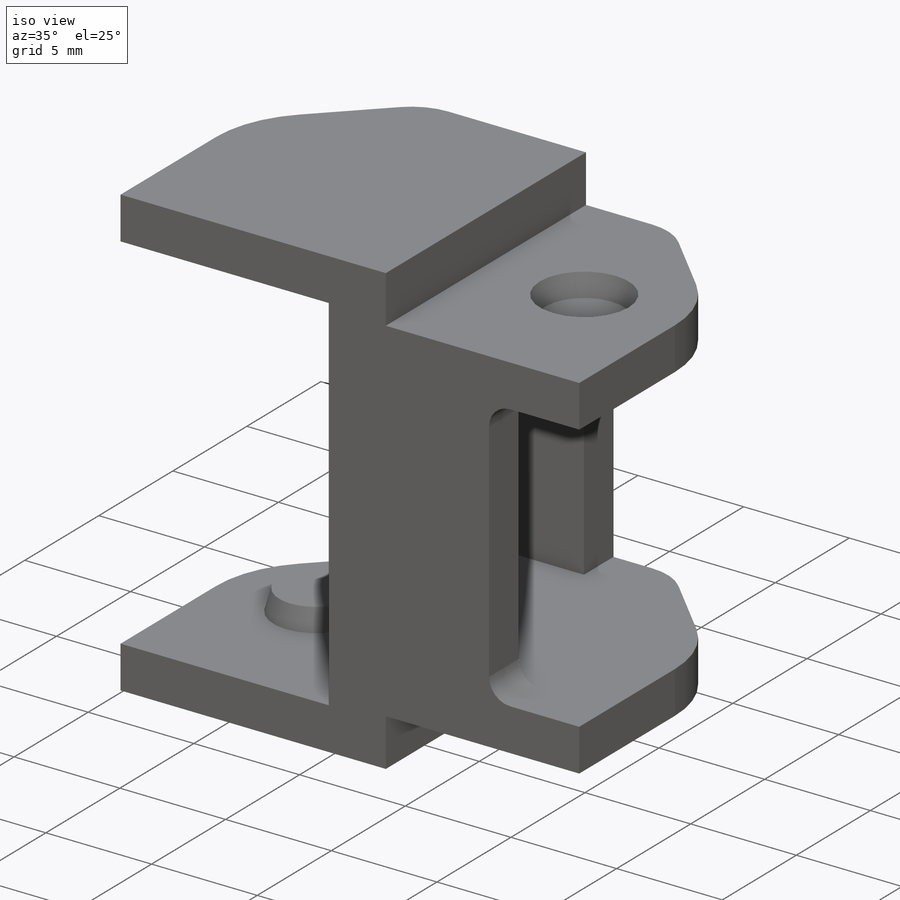
[diagram: iso view]
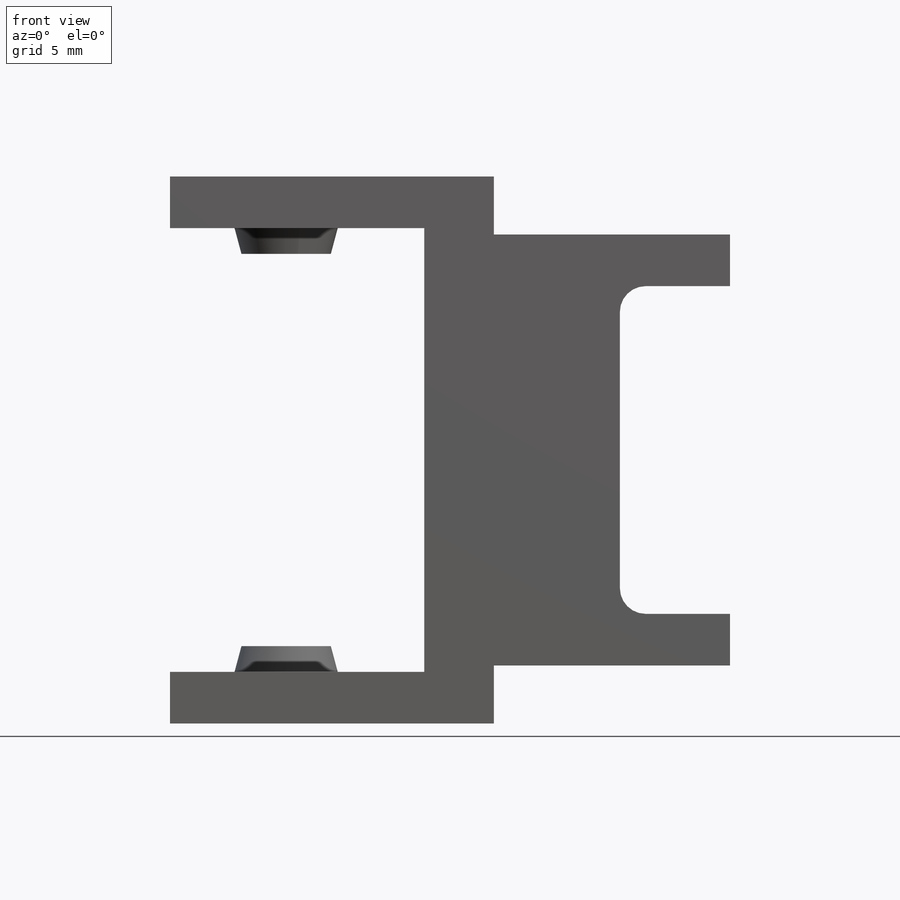
[diagram: front view]
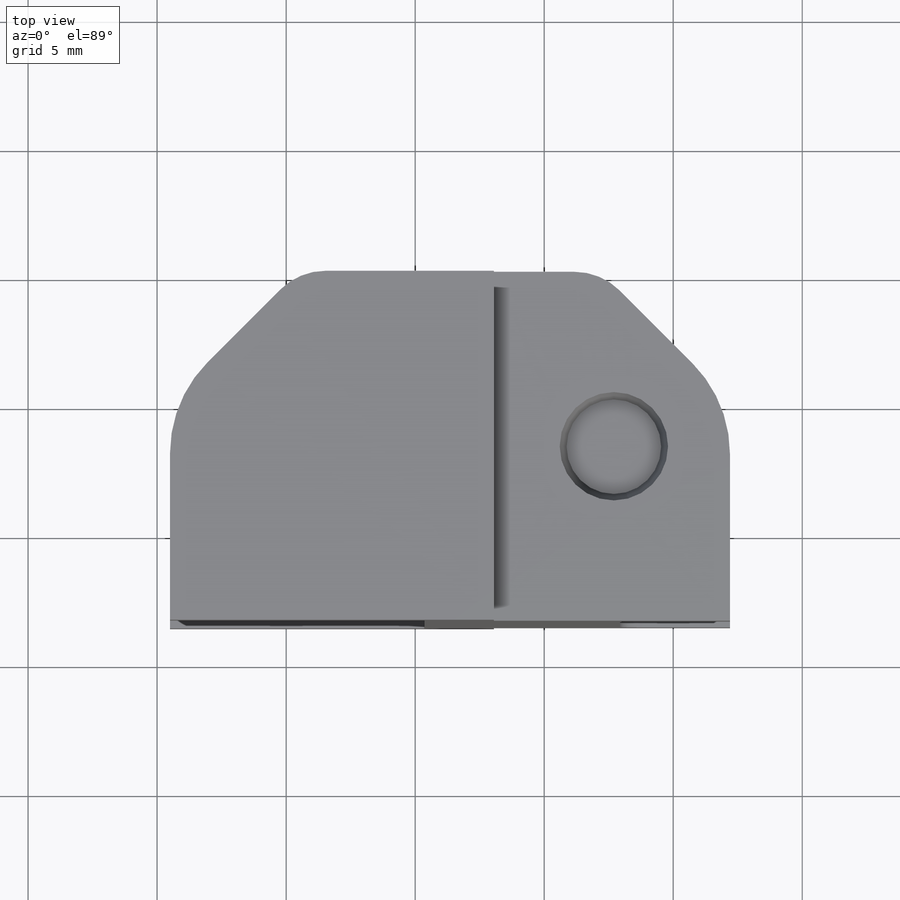
[diagram: top view]
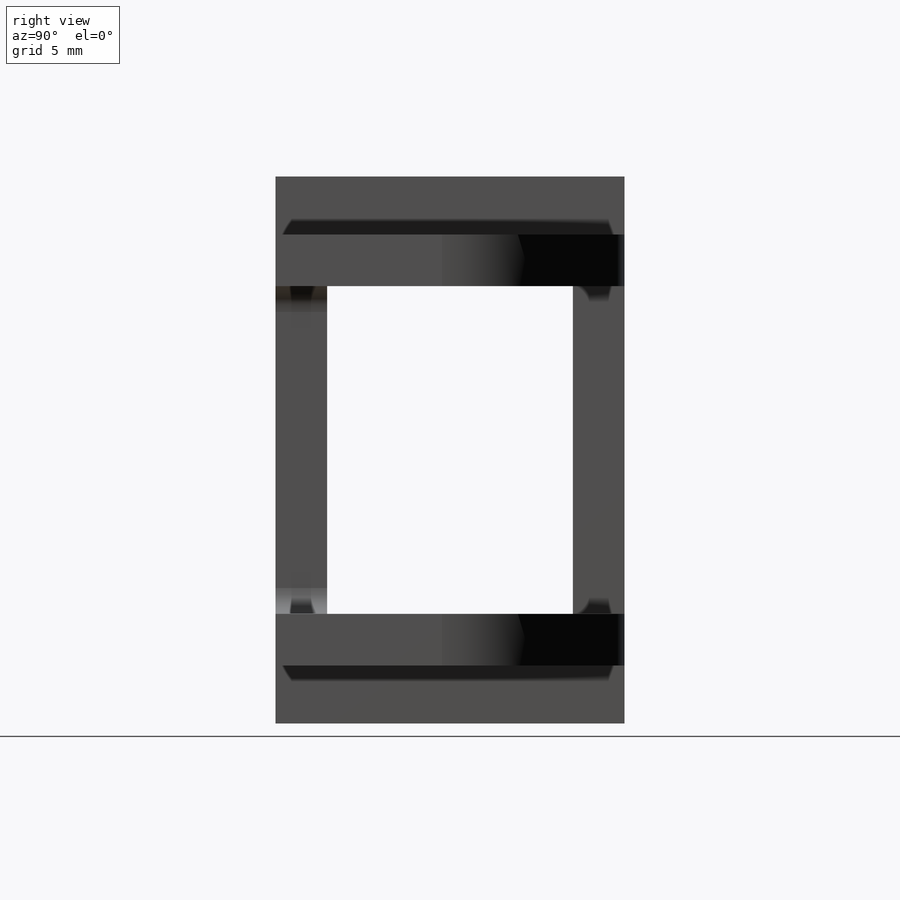
[diagram: right view]
SOLIDWORKS PART (.sldprt)
format: sldprt  version: not decoded by parser v0  size: 504,320 bytes
history: native  units: mm
features: sketch x7, chamfer x5, extrude x4, cut_extrude x3, fillet x3, material x1 (+11 scaffold rows collapsed)
feature tree (34):
  scaffold x11  (default folders/planes/origin — collapsed)
  material  "Material <not specified>"
  sketch  "Sketch1"  dims[D1=0.1mm]
  extrude  "Boss-Extrude1"  Depth=13.525mm
  sketch  "Sketch3"  dims[D1=2.0mm]
  cut_extrude  "Cut-Extrude1"  Depth=5mm
  sketch  "Sketch4"  dims[D1=4.5mm]
  extrude  "Boss-Extrude2"  Depth=1mm
  chamfer  "Chamfer2"  Distance=1mm Angle=15deg
  sketch  "Sketch5"  dims[D1=4.5mm]
  extrude  "Boss-Extrude3"  Depth=1mm
  chamfer  "Chamfer3"  Distance=1mm Angle=15deg
  sketch  "Sketch6"  dims[D1=4.5mm]
  cut_extrude  "Cut-Extrude2"  Depth=1mm
  chamfer  "Chamfer5"  Distance=5mm Angle=45deg
  fillet  "Fillet2"  Radius=5mm
  sketch  "Sketch7"
  cut_extrude  "Cut-Extrude3"  Depth=1mm
  fillet  "Fillet3"  Radius=2.5mm
  chamfer  "Chamfer8"  Distance=1mm Angle=15deg
  chamfer  "Chamfer10"  Distance=1mm Angle=15deg
  sketch  "Sketch8"
  extrude  "Boss-Extrude4"  Depth=2mm
  fillet  "Fillet4"  Radius=1mm
decode coverage: 20 of 22 modeling features carry decoded parameters
note: suppression state not decoded; provenance and decode notes live in map.json
